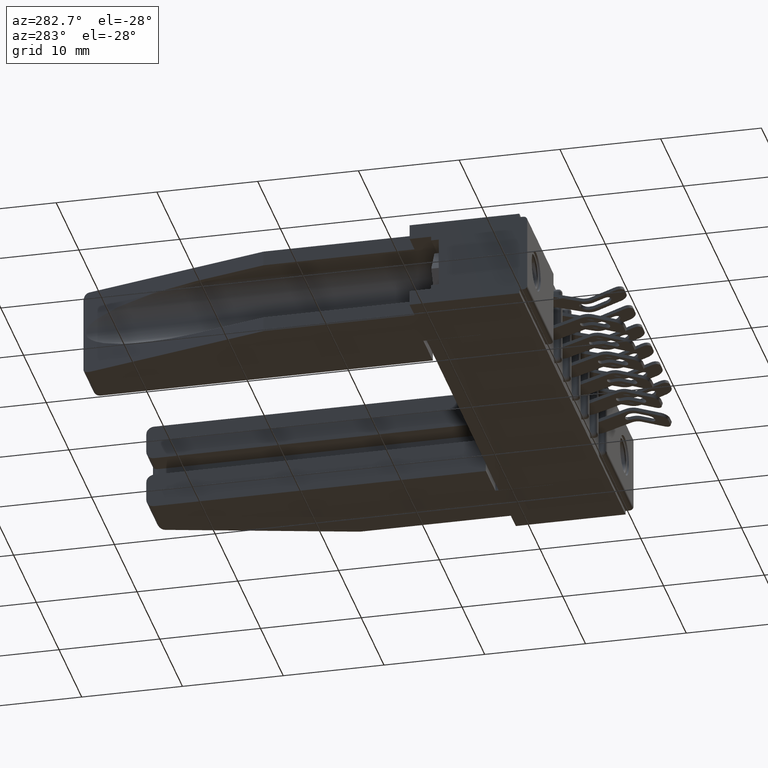
[diagram: clean part render]
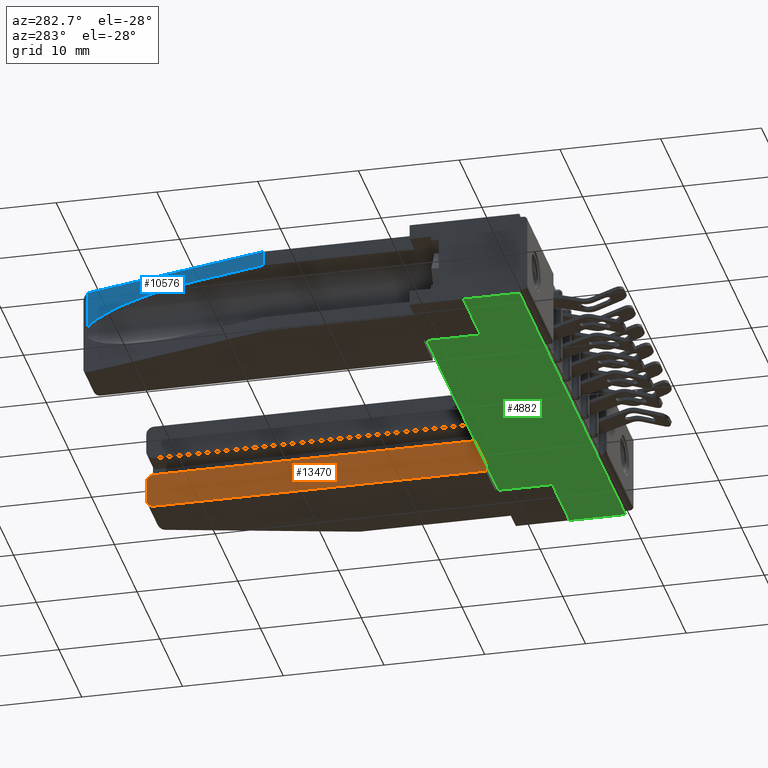
[diagram: same view with three faces highlighted in distinct colors, each labeled with its STEP entity id]
A machine part, auxiliary view with three faces highlighted in distinct colors.
Their STEP definitions:

[orange] entity #13470 — the highlighted planar face has unit normal (-1, -0, -0).
#10 = LINE ( 'NONE', #295, #5229 ) ;
#11 = ORIENTED_EDGE ( 'NONE', *, *, #8597, .F. ) ;
#295 = CARTESIAN_POINT ( 'NONE',  ( 0.4610000000000000800, 1.550000000000000000, -0.3430000000000000300 ) ) ;
#337 = DIRECTION ( 'NONE',  ( 1.000000000000000000, -5.146661630867112300E-017, 0.0000000000000000000 ) ) ;
#883 = LINE ( 'NONE', #6122, #6278 ) ;
#1099 = ORIENTED_EDGE ( 'NONE', *, *, #4156, .T. ) ;
#1111 = EDGE_LOOP ( 'NONE', ( #5186, #1099, #13313, #11, #7519, #10627 ) ) ;
#1177 = CARTESIAN_POINT ( 'NONE',  ( 0.4610000000000000800, 1.550000000000000000, -0.1060000000000000400 ) ) ;
#1542 = AXIS2_PLACEMENT_3D ( 'NONE', #4354, #12789, #9586 ) ;
#2344 = CARTESIAN_POINT ( 'NONE',  ( 0.4610000000000000200, 0.2230000000000000300, 0.0000000000000000000 ) ) ;
#2468 = PLANE ( 'NONE',  #6633 ) ;
#2925 = CARTESIAN_POINT ( 'NONE',  ( 0.4610000000000000800, 1.519999999999999600, -0.1360000000000000400 ) ) ;
#4156 = EDGE_CURVE ( 'NONE', #12608, #4450, #10193, .T. ) ;
#4160 = DIRECTION ( 'NONE',  ( 0.0000000000000000000, 1.000000000000000000, 0.0000000000000000000 ) ) ;
#4279 = EDGE_CURVE ( 'NONE', #13260, #8109, #11585, .T. ) ;
#4354 = CARTESIAN_POINT ( 'NONE',  ( 0.4610000000000000800, 1.520000000000000200, -0.02999999999999999900 ) ) ;
#4450 = VERTEX_POINT ( 'NONE', #11227 ) ;
#4521 = DIRECTION ( 'NONE',  ( 0.0000000000000000000, 0.0000000000000000000, 1.000000000000000000 ) ) ;
#4976 = DIRECTION ( 'NONE',  ( -5.146661630867112300E-017, -1.000000000000000000, -6.433327038583891200E-017 ) ) ;
#5186 = ORIENTED_EDGE ( 'NONE', *, *, #8729, .T. ) ;
#5229 = VECTOR ( 'NONE', #4521, 39.37007874015748100 ) ;
#5362 = CARTESIAN_POINT ( 'NONE',  ( 0.4610000000000000800, 1.520000000000000200, -0.1060000000000000200 ) ) ;
#6055 = VERTEX_POINT ( 'NONE', #7998 ) ;
#6122 = CARTESIAN_POINT ( 'NONE',  ( 0.4610000000000000200, 0.2230000000000000300, -0.1360000000000001200 ) ) ;
#6210 = EDGE_CURVE ( 'NONE', #6907, #4450, #7469, .T. ) ;
#6278 = VECTOR ( 'NONE', #4976, 39.37007874015748100 ) ;
#6633 = AXIS2_PLACEMENT_3D ( 'NONE', #10019, #337, #8948 ) ;
#6751 = EDGE_CURVE ( 'NONE', #13260, #6055, #883, .T. ) ;
#6907 = VERTEX_POINT ( 'NONE', #2344 ) ;
#7469 = LINE ( 'NONE', #9173, #8139 ) ;
#7519 = ORIENTED_EDGE ( 'NONE', *, *, #6751, .F. ) ;
#7590 = VECTOR ( 'NONE', #8546, 39.37007874015748100 ) ;
#7607 = CARTESIAN_POINT ( 'NONE',  ( 0.4610000000000000200, 0.2230000000000000300, -0.3430000000000000300 ) ) ;
#7684 = FACE_OUTER_BOUND ( 'NONE', #1111, .T. ) ;
#7698 = CARTESIAN_POINT ( 'NONE',  ( 0.4610000000000000800, 1.550000000000000000, -0.03000000000000002300 ) ) ;
#7998 = CARTESIAN_POINT ( 'NONE',  ( 0.4610000000000000200, 0.2230000000000000300, -0.1360000000000001200 ) ) ;
#8109 = VERTEX_POINT ( 'NONE', #1177 ) ;
#8139 = VECTOR ( 'NONE', #10198, 39.37007874015748100 ) ;
#8546 = DIRECTION ( 'NONE',  ( 0.0000000000000000000, 0.0000000000000000000, 1.000000000000000000 ) ) ;
#8597 = EDGE_CURVE ( 'NONE', #6055, #6907, #9093, .T. ) ;
#8729 = EDGE_CURVE ( 'NONE', #8109, #12608, #10, .T. ) ;
#8948 = DIRECTION ( 'NONE',  ( 5.146661630867112300E-017, 1.000000000000000000, 0.0000000000000000000 ) ) ;
#9093 = LINE ( 'NONE', #7607, #7590 ) ;
#9173 = CARTESIAN_POINT ( 'NONE',  ( 0.4610000000000000200, 0.2230000000000000300, 0.0000000000000000000 ) ) ;
#9198 = AXIS2_PLACEMENT_3D ( 'NONE', #5362, #11871, #4160 ) ;
#9586 = DIRECTION ( 'NONE',  ( 0.0000000000000000000, 1.000000000000000000, 0.0000000000000000000 ) ) ;
#10019 = CARTESIAN_POINT ( 'NONE',  ( 0.4610000000000000200, 0.2230000000000000300, -0.3430000000000000300 ) ) ;
#10193 = CIRCLE ( 'NONE', #1542, 0.02999999999999995400 ) ;
#10198 = DIRECTION ( 'NONE',  ( 5.146661630867112300E-017, 1.000000000000000000, 0.0000000000000000000 ) ) ;
#10627 = ORIENTED_EDGE ( 'NONE', *, *, #4279, .T. ) ;
#11227 = CARTESIAN_POINT ( 'NONE',  ( 0.4610000000000000800, 1.519999999999999600, 0.0000000000000000000 ) ) ;
#11585 = CIRCLE ( 'NONE', #9198, 0.02999999999999995400 ) ;
#11871 = DIRECTION ( 'NONE',  ( 1.000000000000000000, -5.146661630867112300E-017, 0.0000000000000000000 ) ) ;
#12608 = VERTEX_POINT ( 'NONE', #7698 ) ;
#12789 = DIRECTION ( 'NONE',  ( 1.000000000000000000, -5.146661630867112300E-017, 0.0000000000000000000 ) ) ;
#13260 = VERTEX_POINT ( 'NONE', #2925 ) ;
#13313 = ORIENTED_EDGE ( 'NONE', *, *, #6210, .F. ) ;
#13470 = ADVANCED_FACE ( 'NONE', ( #7684 ), #2468, .T. ) ;

[blue] entity #10576 — the highlighted planar face has unit normal (-0.9709, 0.2395, 0).
#204 = VECTOR ( 'NONE', #6364, 39.37007874015748100 ) ;
#648 = EDGE_CURVE ( 'NONE', #13130, #7153, #10524, .T. ) ;
#1038 = DIRECTION ( 'NONE',  ( 0.2394884713086026000, 0.9708992080078490100, 1.319044556149451100E-017 ) ) ;
#1907 = EDGE_CURVE ( 'NONE', #7153, #13927, #7031, .T. ) ;
#1929 = AXIS2_PLACEMENT_3D ( 'NONE', #2864, #3976, #3928 ) ;
#2195 = CARTESIAN_POINT ( 'NONE',  ( 0.2710000000000000200, 1.550000000000000000, 0.0000000000000000000 ) ) ;
#2458 = CARTESIAN_POINT ( 'NONE',  ( 0.2111379438000715000, 1.307315988378668500, -0.05900000000000001800 ) ) ;
#2643 = EDGE_LOOP ( 'NONE', ( #6579, #8409, #11634, #5378, #13722, #6528 ) ) ;
#2849 = CARTESIAN_POINT ( 'NONE',  ( 0.1550000000000000000, 1.079729729729729500, -0.05900000000000003900 ) ) ;
#2864 = CARTESIAN_POINT ( 'NONE',  ( 0.2710000000000000200, 1.550000000000000000, -0.3430000000000000300 ) ) ;
#3416 = CARTESIAN_POINT ( 'NONE',  ( 0.2653722146876837400, 1.527184654139258400, -0.0008730237597645572600 ) ) ;
#3928 = DIRECTION ( 'NONE',  ( -0.2394884713086026000, -0.9708992080078490100, 0.0000000000000000000 ) ) ;
#3976 = DIRECTION ( 'NONE',  ( -0.9708992080078491200, 0.2394884713086026200, 0.0000000000000000000 ) ) ;
#4025 = PLANE ( 'NONE',  #1929 ) ;
#4893 = EDGE_CURVE ( 'NONE', #10099, #7604, #12057, .T. ) ;
#5100 = CARTESIAN_POINT ( 'NONE',  ( 0.08600000000000016000, 0.8000000000000000400, -0.05900000000000001800 ) ) ;
#5346 = CARTESIAN_POINT ( 'NONE',  ( 0.08600000000000013200, 0.8000000000000000400, -0.3430000000000000300 ) ) ;
#5378 = ORIENTED_EDGE ( 'NONE', *, *, #648, .F. ) ;
#5451 = DIRECTION ( 'NONE',  ( -0.2394884713086026000, -0.9708992080078490100, 0.0000000000000000000 ) ) ;
#5677 = CARTESIAN_POINT ( 'NONE',  ( 0.2641979944228299800, 1.522424301714175400, 1.484456667216083200E-019 ) ) ;
#5835 = CARTESIAN_POINT ( 'NONE',  ( 0.2653722146876837400, 1.527184654139258400, -0.1497233100555697400 ) ) ;
#5865 = CARTESIAN_POINT ( 'NONE',  ( 0.08600000000000013200, 0.8000000000000000400, 0.0000000000000000000 ) ) ;
#5960 = EDGE_CURVE ( 'NONE', #13130, #7604, #12187, .T. ) ;
#6227 = CARTESIAN_POINT ( 'NONE',  ( 0.2636000000000000600, 1.520000000000000200, 0.0000000000000000000 ) ) ;
#6364 = DIRECTION ( 'NONE',  ( -0.0000000000000000000, -0.0000000000000000000, -1.000000000000000000 ) ) ;
#6528 = ORIENTED_EDGE ( 'NONE', *, *, #4893, .F. ) ;
#6540 = VERTEX_POINT ( 'NONE', #3416 ) ;
#6579 = ORIENTED_EDGE ( 'NONE', *, *, #6990, .T. ) ;
#6984 = VECTOR ( 'NONE', #5451, 39.37007874015748900 ) ;
#6990 = EDGE_CURVE ( 'NONE', #10099, #6540, #10388, .T. ) ;
#7031 =( BOUNDED_CURVE ( )  B_SPLINE_CURVE ( 3, ( #11017, #2458, #7861, #11112 ),
 .UNSPECIFIED., .F., .F. ) 
 B_SPLINE_CURVE_WITH_KNOTS ( ( 4, 4 ),
 ( 4.712388980384689700, 6.088385046520238900 ),
 .UNSPECIFIED. ) 
 CURVE ( )  GEOMETRIC_REPRESENTATION_ITEM ( )  RATIONAL_B_SPLINE_CURVE ( ( 1.000000000000000000, 0.8483458633392274600, 0.8483458633392274600, 1.000000000000000000 ) ) 
 REPRESENTATION_ITEM ( '' )  );
#7153 = VERTEX_POINT ( 'NONE', #2849 ) ;
#7604 = VERTEX_POINT ( 'NONE', #5865 ) ;
#7861 = CARTESIAN_POINT ( 'NONE',  ( 0.2545055604987769800, 1.483130650670717600, -0.09464713952022194000 ) ) ;
#8409 = ORIENTED_EDGE ( 'NONE', *, *, #10109, .T. ) ;
#9325 = VECTOR ( 'NONE', #12862, 39.37007874015748100 ) ;
#10099 = VERTEX_POINT ( 'NONE', #6227 ) ;
#10109 = EDGE_CURVE ( 'NONE', #6540, #13927, #13017, .T. ) ;
#10388 =( BOUNDED_CURVE ( )  B_SPLINE_CURVE ( 3, ( #11086, #5677, #10994, #12003 ),
 .UNSPECIFIED., .F., .F. ) 
 B_SPLINE_CURVE_WITH_KNOTS ( ( 4, 4 ),
 ( 1.570796326794896600, 1.812635282813201300 ),
 .UNSPECIFIED. ) 
 CURVE ( )  GEOMETRIC_REPRESENTATION_ITEM ( )  RATIONAL_B_SPLINE_CURVE ( ( 1.000000000000000000, 0.9951320956316031000, 0.9951320956316031000, 1.000000000000000000 ) ) 
 REPRESENTATION_ITEM ( '' )  );
#10524 = LINE ( 'NONE', #12742, #12529 ) ;
#10576 = ADVANCED_FACE ( 'NONE', ( #10810 ), #4025, .T. ) ;
#10810 = FACE_OUTER_BOUND ( 'NONE', #2643, .T. ) ;
#10994 = CARTESIAN_POINT ( 'NONE',  ( 0.2647916223761651000, 1.524830901524993200, -0.0002924314482458906100 ) ) ;
#11017 = CARTESIAN_POINT ( 'NONE',  ( 0.1550000000000000000, 1.079729729729729500, -0.05900000000000003900 ) ) ;
#11086 = CARTESIAN_POINT ( 'NONE',  ( 0.2636000000000000600, 1.520000000000000200, 0.0000000000000000000 ) ) ;
#11112 = CARTESIAN_POINT ( 'NONE',  ( 0.2653722146876837400, 1.527184654139258400, -0.1497233100555697400 ) ) ;
#11634 = ORIENTED_EDGE ( 'NONE', *, *, #1907, .F. ) ;
#12003 = CARTESIAN_POINT ( 'NONE',  ( 0.2653722146876837400, 1.527184654139258400, -0.0008730237597645572600 ) ) ;
#12057 = LINE ( 'NONE', #2195, #6984 ) ;
#12187 = LINE ( 'NONE', #5346, #9325 ) ;
#12529 = VECTOR ( 'NONE', #1038, 39.37007874015748900 ) ;
#12742 = CARTESIAN_POINT ( 'NONE',  ( 0.2710000000000000200, 1.550000000000000000, -0.05900000000000000400 ) ) ;
#12862 = DIRECTION ( 'NONE',  ( 0.0000000000000000000, 0.0000000000000000000, 1.000000000000000000 ) ) ;
#13017 = LINE ( 'NONE', #13801, #204 ) ;
#13130 = VERTEX_POINT ( 'NONE', #5100 ) ;
#13722 = ORIENTED_EDGE ( 'NONE', *, *, #5960, .T. ) ;
#13801 = CARTESIAN_POINT ( 'NONE',  ( 0.2653722146876837400, 1.527184654139258400, -0.3430000000000000300 ) ) ;
#13927 = VERTEX_POINT ( 'NONE', #5835 ) ;

[green] entity #4882 — the highlighted planar face has unit normal (0, 0, 1).
#506 = LINE ( 'NONE', #1007, #856 ) ;
#543 = DIRECTION ( 'NONE',  ( -0.0000000000000000000, 1.000000000000000000, -0.0000000000000000000 ) ) ;
#586 = ORIENTED_EDGE ( 'NONE', *, *, #13846, .F. ) ;
#856 = VECTOR ( 'NONE', #6467, 39.37007874015748100 ) ;
#877 = VERTEX_POINT ( 'NONE', #4534 ) ;
#1007 = CARTESIAN_POINT ( 'NONE',  ( 0.0000000000000000000, 0.4600000000000000200, -0.3430000000000000300 ) ) ;
#1072 = LINE ( 'NONE', #12023, #3250 ) ;
#1528 = VERTEX_POINT ( 'NONE', #7422 ) ;
#1798 = EDGE_CURVE ( 'NONE', #1528, #3456, #1072, .T. ) ;
#1865 = CARTESIAN_POINT ( 'NONE',  ( 0.2980000000000002100, 0.2500000000000000600, -0.3430000000000000300 ) ) ;
#2054 = VERTEX_POINT ( 'NONE', #13409 ) ;
#2432 = CARTESIAN_POINT ( 'NONE',  ( 0.0000000000000000000, 0.2500000000000000600, -0.3430000000000000300 ) ) ;
#2683 = ORIENTED_EDGE ( 'NONE', *, *, #2726, .F. ) ;
#2726 = EDGE_CURVE ( 'NONE', #9391, #9300, #506, .T. ) ;
#2755 = EDGE_CURVE ( 'NONE', #9886, #3456, #5911, .T. ) ;
#3250 = VECTOR ( 'NONE', #4423, 39.37007874015748100 ) ;
#3456 = VERTEX_POINT ( 'NONE', #6734 ) ;
#3625 = CARTESIAN_POINT ( 'NONE',  ( 1.544000000000000300, 0.4600000000000000200, -0.3429999999999997500 ) ) ;
#3759 = CARTESIAN_POINT ( 'NONE',  ( 1.842000000000000100, 0.03100000000000000000, -0.3430000000000000300 ) ) ;
#4123 = CARTESIAN_POINT ( 'NONE',  ( 1.842000000000000100, 0.2500000000000000600, -0.3430000000000000300 ) ) ;
#4136 = VECTOR ( 'NONE', #11088, 39.37007874015748100 ) ;
#4226 = VECTOR ( 'NONE', #12764, 39.37007874015748100 ) ;
#4246 = CARTESIAN_POINT ( 'NONE',  ( 0.0000000000000000000, 0.4600000000000000200, -0.3430000000000000300 ) ) ;
#4370 = EDGE_CURVE ( 'NONE', #9016, #9886, #7000, .T. ) ;
#4423 = DIRECTION ( 'NONE',  ( -0.0000000000000000000, -1.000000000000000000, -0.0000000000000000000 ) ) ;
#4534 = CARTESIAN_POINT ( 'NONE',  ( 1.544000000000000300, 0.2500000000000000600, -0.3429999999999997500 ) ) ;
#4882 = ADVANCED_FACE ( 'NONE', ( #7840 ), #10689, .F. ) ;
#5071 = CARTESIAN_POINT ( 'NONE',  ( 1.544000000000000300, 0.2500000000000000600, -0.3429999999999997500 ) ) ;
#5250 = ORIENTED_EDGE ( 'NONE', *, *, #8358, .F. ) ;
#5743 = LINE ( 'NONE', #5071, #8433 ) ;
#5911 = LINE ( 'NONE', #13957, #4226 ) ;
#6096 = LINE ( 'NONE', #1865, #13653 ) ;
#6340 = ORIENTED_EDGE ( 'NONE', *, *, #1798, .F. ) ;
#6467 = DIRECTION ( 'NONE',  ( -1.000000000000000000, -0.0000000000000000000, -0.0000000000000000000 ) ) ;
#6495 = ORIENTED_EDGE ( 'NONE', *, *, #4370, .T. ) ;
#6658 = LINE ( 'NONE', #7390, #7672 ) ;
#6734 = CARTESIAN_POINT ( 'NONE',  ( 0.0000000000000000000, 0.03100000000000000000, -0.3430000000000000300 ) ) ;
#6830 = ORIENTED_EDGE ( 'NONE', *, *, #2755, .T. ) ;
#7000 = LINE ( 'NONE', #7613, #7857 ) ;
#7390 = CARTESIAN_POINT ( 'NONE',  ( 1.842000000000000100, 0.2500000000000000600, -0.3430000000000000300 ) ) ;
#7422 = CARTESIAN_POINT ( 'NONE',  ( 0.0000000000000000000, 0.2500000000000000600, -0.3430000000000000300 ) ) ;
#7613 = CARTESIAN_POINT ( 'NONE',  ( 1.842000000000000100, 0.4600000000000000200, -0.3430000000000000300 ) ) ;
#7650 = DIRECTION ( 'NONE',  ( -0.0000000000000000000, -1.000000000000000000, -0.0000000000000000000 ) ) ;
#7672 = VECTOR ( 'NONE', #10728, 39.37007874015748100 ) ;
#7840 = FACE_OUTER_BOUND ( 'NONE', #10097, .T. ) ;
#7857 = VECTOR ( 'NONE', #7650, 39.37007874015748100 ) ;
#8358 = EDGE_CURVE ( 'NONE', #877, #9391, #5743, .T. ) ;
#8433 = VECTOR ( 'NONE', #543, 39.37007874015748100 ) ;
#8851 = LINE ( 'NONE', #2432, #4136 ) ;
#9016 = VERTEX_POINT ( 'NONE', #4123 ) ;
#9300 = VERTEX_POINT ( 'NONE', #12977 ) ;
#9391 = VERTEX_POINT ( 'NONE', #3625 ) ;
#9704 = ORIENTED_EDGE ( 'NONE', *, *, #10783, .T. ) ;
#9787 = DIRECTION ( 'NONE',  ( 1.000000000000000000, 0.0000000000000000000, -0.0000000000000000000 ) ) ;
#9886 = VERTEX_POINT ( 'NONE', #3759 ) ;
#10097 = EDGE_LOOP ( 'NONE', ( #2683, #5250, #586, #6495, #6830, #6340, #11082, #9704 ) ) ;
#10552 = DIRECTION ( 'NONE',  ( -0.0000000000000000000, 1.000000000000000000, -0.0000000000000000000 ) ) ;
#10689 = PLANE ( 'NONE',  #12997 ) ;
#10728 = DIRECTION ( 'NONE',  ( -1.000000000000000000, 0.0000000000000000000, 9.167275146524376100E-016 ) ) ;
#10783 = EDGE_CURVE ( 'NONE', #2054, #9300, #6096, .T. ) ;
#11082 = ORIENTED_EDGE ( 'NONE', *, *, #13789, .F. ) ;
#11088 = DIRECTION ( 'NONE',  ( -1.000000000000000000, -0.0000000000000000000, -0.0000000000000000000 ) ) ;
#12023 = CARTESIAN_POINT ( 'NONE',  ( 0.0000000000000000000, 0.4600000000000000200, -0.3430000000000000300 ) ) ;
#12764 = DIRECTION ( 'NONE',  ( -1.000000000000000000, -0.0000000000000000000, -0.0000000000000000000 ) ) ;
#12863 = DIRECTION ( 'NONE',  ( 0.0000000000000000000, 0.0000000000000000000, 1.000000000000000000 ) ) ;
#12977 = CARTESIAN_POINT ( 'NONE',  ( 0.2980000000000002100, 0.4600000000000000200, -0.3430000000000000300 ) ) ;
#12997 = AXIS2_PLACEMENT_3D ( 'NONE', #4246, #12863, #9787 ) ;
#13409 = CARTESIAN_POINT ( 'NONE',  ( 0.2980000000000002100, 0.2500000000000000600, -0.3430000000000000300 ) ) ;
#13653 = VECTOR ( 'NONE', #10552, 39.37007874015748100 ) ;
#13789 = EDGE_CURVE ( 'NONE', #2054, #1528, #8851, .T. ) ;
#13846 = EDGE_CURVE ( 'NONE', #9016, #877, #6658, .T. ) ;
#13957 = CARTESIAN_POINT ( 'NONE',  ( 1.842000000000000100, 0.03100000000000000000, -0.3430000000000000300 ) ) ;